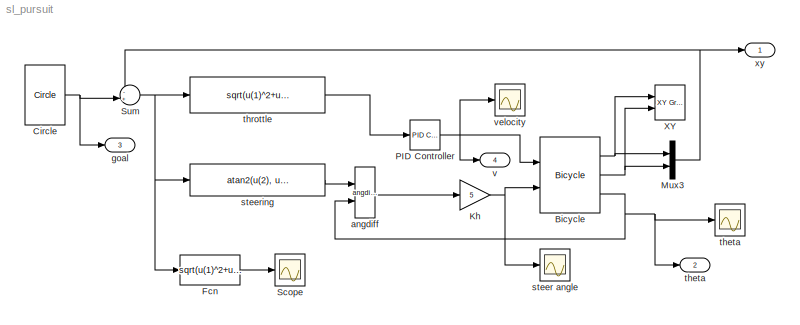
MODEL sl_pursuit
KIND model
BLOCK [Reference] Bicycle  REF=roblocks/Dynamics/Bicycle  (lib defined in mdl_2a292b13c81b, mdl_69400f8cfe22, +12 more)
  FunctionWithSeparateData = off
  GeneratePreprocessorConditionals = off
  L = 1
  Ports = [2, 3]
  RTWMemSecDataConstants = Inherit from model
  RTWMemSecDataInternal = Inherit from model
  RTWMemSecDataParameters = Inherit from model
  RTWMemSecFuncExecute = Inherit from model
  RTWMemSecFuncInitTerm = Inherit from model
  SID = 49
  ShowPortLabels = FromPortIcon
  SourceBlock = roblocks/Dynamics/Bicycle
  SystemSampleTime = -1
  accel = 1
  alim = 1
  handbrake = 0
  vlim = 2
  x0 = [0, 0, 0]
BLOCK [Reference] Circle  REF=roblocks/Trajectory/Circle  (lib defined in mdl_2a292b13c81b, mdl_69400f8cfe22, +12 more)
  FunctionWithSeparateData = off
  GeneratePreprocessorConditionals = off
  Ports = [0, 1]
  RTWMemSecDataConstants = Inherit from model
  RTWMemSecDataInternal = Inherit from model
  RTWMemSecDataParameters = Inherit from model
  RTWMemSecFuncExecute = Inherit from model
  RTWMemSecFuncInitTerm = Inherit from model
  SID = 47
  ShowPortLabels = FromPortIcon
  SourceBlock = roblocks/Trajectory/Circle
  SystemSampleTime = -1
  freq = 0.2
  radius = 1
BLOCK [Fcn] Fcn
  Expr = sqrt(u(1)^2+u(2)^2)
  SID = 50
BLOCK [Gain] Kh
  Gain = 5
  OutDataTypeStr = Inherit: Inherit via internal rule
  ParamDataTypeStr = Inherit: Inherit via internal rule
  SID = 24
  SaturateOnIntegerOverflow = off
BLOCK [Mux] Mux3
  DisplayOption = bar
  Inputs = 2
  Ports = [2, 1]
  SID = 25
BLOCK [Reference] PID Controller  REF=simulink_need_slupdate/PID Controller
  D = 0
  FunctionWithSeparateData = off
  GeneratePreprocessorConditionals = off
  I = 0.5
  P = 1
  Ports = [1, 1]
  RTWMemSecDataConstants = Inherit from model
  RTWMemSecDataInternal = Inherit from model
  RTWMemSecDataParameters = Inherit from model
  RTWMemSecFuncExecute = Inherit from model
  RTWMemSecFuncInitTerm = Inherit from model
  SID = 26
  ShowPortLabels = FromPortIcon
  SourceBlock = simulink_need_slupdate/PID Controller
  SourceType = PID Controller
  SystemSampleTime = -1
BLOCK [Scope] Scope
  DataFormat = StructureWithTime
  Floating = off
  NumInputPorts = 1
  Ports = [1]
  SID = 51
  SampleTime = 0
  SaveName = ScopeData3
BLOCK [Sum] Sum
  IconShape = round
  InputSameDT = off
  Inputs = -+|
  OutDataTypeStr = Inherit: Inherit via internal rule
  Ports = [2, 1]
  SID = 27
  SaturateOnIntegerOverflow = off
BLOCK [Reference] XY  REF=simulink/Sinks/XY Graph
  FunctionWithSeparateData = off
  GeneratePreprocessorConditionals = off
  Ports = [2]
  RTWMemSecDataConstants = Inherit from model
  RTWMemSecDataInternal = Inherit from model
  RTWMemSecDataParameters = Inherit from model
  RTWMemSecFuncExecute = Inherit from model
  RTWMemSecFuncInitTerm = Inherit from model
  SID = 28
  ShowPortLabels = FromPortIcon
  SourceBlock = simulink/Sinks/XY Graph
  SourceType = XY scope.
  SystemSampleTime = -1
  st = -1
  xmax = 2
  xmin = -2
  ymax = 2
  ymin = -2
BLOCK [Reference] angdiff  REF=roblocks/Trajectory/angdiff  (lib defined in mdl_2a292b13c81b, mdl_69400f8cfe22, +12 more)
  FunctionWithSeparateData = off
  GeneratePreprocessorConditionals = off
  Ports = [2, 1]
  RTWMemSecDataConstants = Inherit from model
  RTWMemSecDataInternal = Inherit from model
  RTWMemSecDataParameters = Inherit from model
  RTWMemSecFuncExecute = Inherit from model
  RTWMemSecFuncInitTerm = Inherit from model
  SID = 48
  ShowPortLabels = FromPortIcon
  SourceBlock = roblocks/Trajectory/angdiff
  SystemSampleTime = -1
BLOCK [Outport] goal
  IconDisplay = Port number
  Port = 3
  SID = 41
BLOCK [Scope] steer angle
  DataFormat = StructureWithTime
  Floating = off
  NumInputPorts = 1
  Ports = [1]
  SID = 43
  SampleTime = 0
  SaveName = ScopeData2
BLOCK [Fcn] steering
  Expr = atan2(u(2), u(1))
  SID = 35
BLOCK [Outport] theta
  IconDisplay = Port number
  Port = 2
  SID = 40
BLOCK [Scope] theta 
  DataFormat = StructureWithTime
  Floating = off
  NumInputPorts = 1
  Ports = [1]
  SID = 36
  SampleTime = 0
BLOCK [Fcn] throttle
  Expr = sqrt(u(1)^2+u(2)^2)-0.1
  SID = 37
BLOCK [Outport] v
  IconDisplay = Port number
  Port = 4
  SID = 46
BLOCK [Scope] velocity
  DataFormat = StructureWithTime
  Floating = off
  NumInputPorts = 1
  Ports = [1]
  SID = 38
  SampleTime = 0
  SaveName = ScopeData1
BLOCK [Outport] xy
  IconDisplay = Port number
  SID = 39
NET Bicycle:1 -> Mux3:1, XY:1
NET Bicycle:2 -> Mux3:2, XY:2
NET Bicycle:3 -> angdiff:2, theta :1, theta:1
NET Circle:1 -> Sum:2, goal:1
LINE Fcn:1 -> Scope:1
NET Kh:1 -> Bicycle:2, steer angle:1
NET Mux3:1 -> Sum:1, xy:1
NET PID Controller:1 -> Bicycle:1, v:1, velocity:1
NET Sum:1 -> Fcn:1, steering:1, throttle:1
LINE angdiff:1 -> Kh:1
LINE steering:1 -> angdiff:1
LINE throttle:1 -> PID Controller:1
note: NET lines group one-source signal fan-out (src -> all destinations, sorted); 1:1 wires keep LINE
